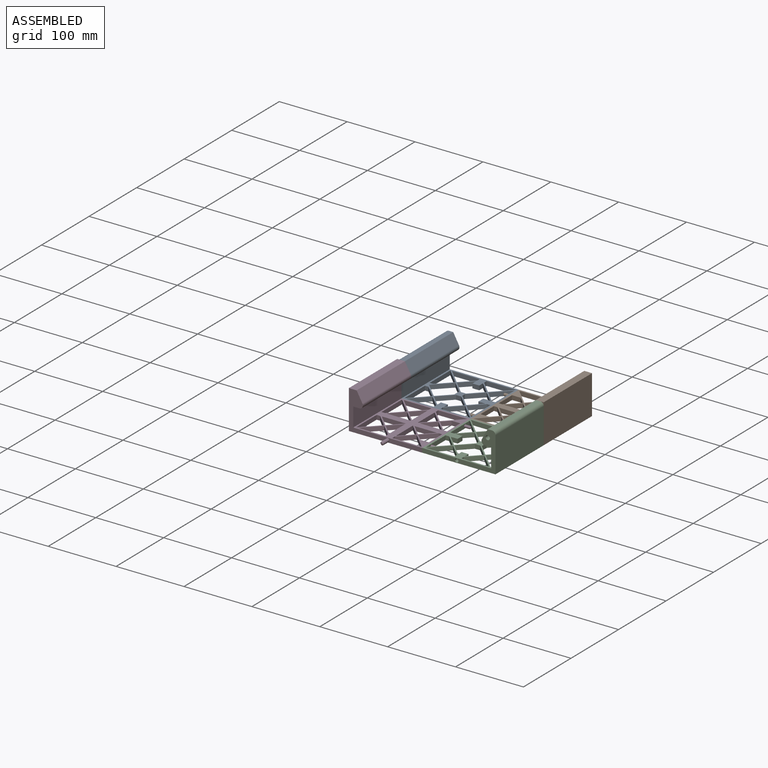
[diagram: assembled view]
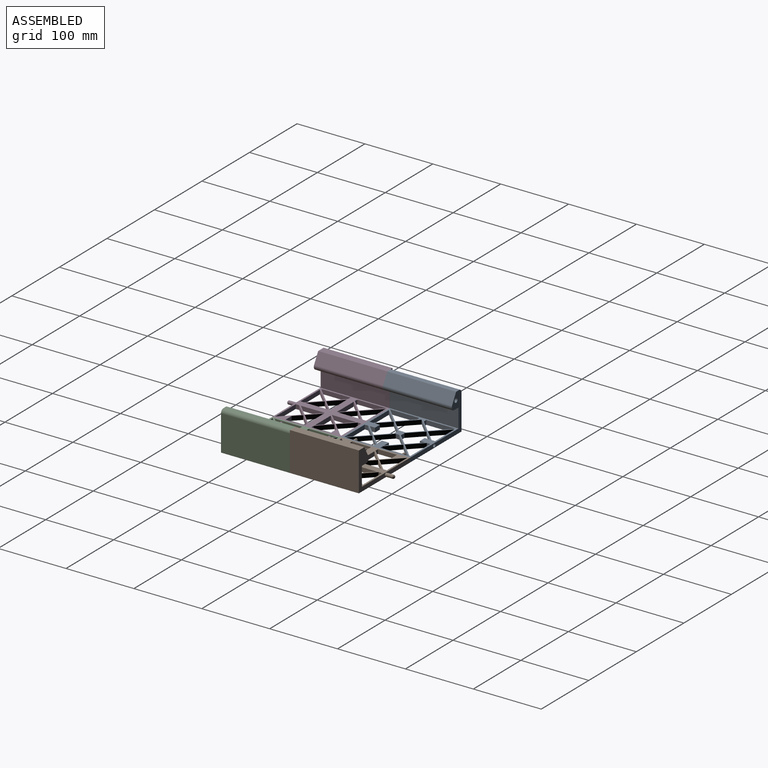
[diagram: assembled view, second angle]
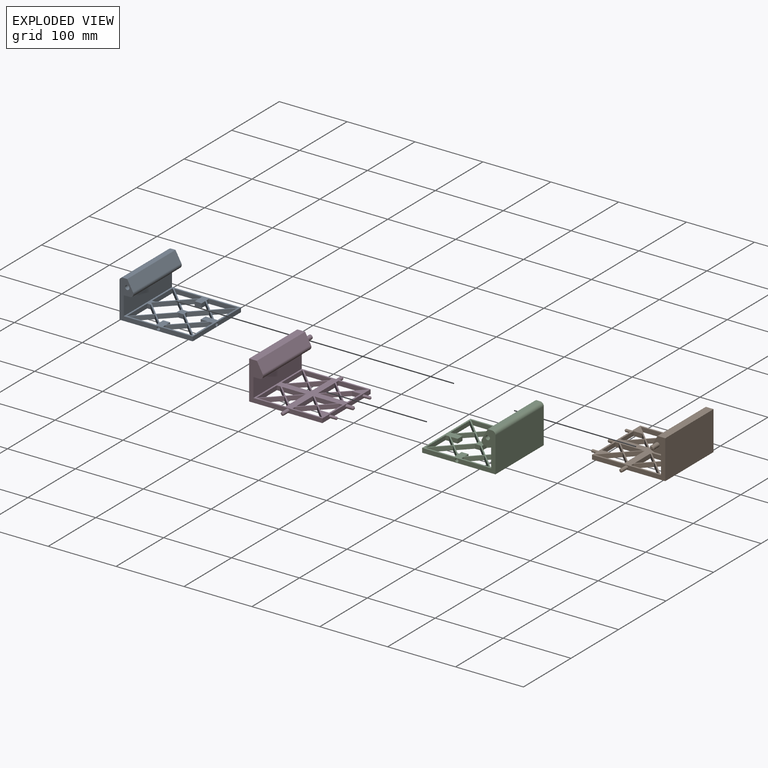
[diagram: exploded view]
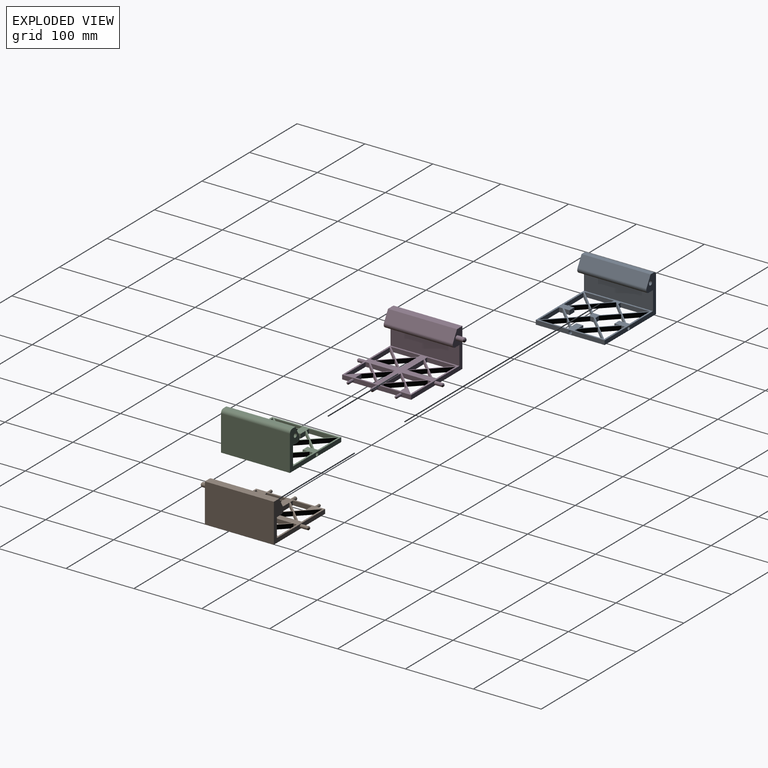
[diagram: exploded view, second angle]
ASSEMBLY  parts=4 mates=3
PART A: 83 faces, bbox 108x101.6x57.2 mm
  f0: plane 107.95x101.6mm, normal (0,0,-1), area 3088.2mm2, adj f3,f4,f8,f9,f11,f12,f13,f14
  f1: plane 101.6x101.6mm, normal (0,0,1), area 2443mm2, adj f4,f5,f8,f9,f11,f12,f13,f14
  f2: plane 101.6x6.35mm, normal (0,0,1), area 645.2mm2, adj f7,f8,f9,f82
  f3: plane 101.6x52.07mm, normal (-1,0,0), area 5290.3mm2, adj f0,f8,f9,f82
  f4: plane 101.6x6.35mm, normal (1,0,0), area 624.9mm2, adj f0,f1,f8,f9,f72
  f5: plane 101.6x27.94mm, normal (1,0,0), area 2838.7mm2, adj f1,f6,f8,f9
  f6: plane 101.6x9.15mm, normal (0,0,-1), area 929.3mm2, adj f5,f8,f9,f10
  f7: plane 101.6x15.31mm, normal (0.87,0,0.49), area 1779.8mm2, adj f2,f8,f9,f10
  f8: plane 107.95x57.15mm, normal (0,-1,0), area 1194.8mm2, adj f0,f1,f2,f3,f4,f5,f6,f7
  f9: plane 107.95x57.15mm, normal (0,1,0), area 1194.8mm2, adj f0,f1,f2,f3,f4,f5,f6,f7
  f10: cylinder r=5.08mm len=101.6mm, axis (0,-1,0), area 1072.5mm2, adj f6,f7,f8,f9
  f11: plane 43.18x6.35mm, normal (0,1,0), area 274.2mm2, adj f0,f1,f12,f14
  f12: plane 24.13x24.13mm, normal (-0.71,-0.71,0), area 216.7mm2, adj f0,f1,f11,f13
  f13: plane 19.05x19.05mm, normal (0.71,-0.71,0), area 171.1mm2, adj f0,f1,f12,f14
  f14: plane 6.35x5.08mm, normal (1,0,0), area 32.3mm2, adj f0,f1,f11,f13
  f15: plane 43.18x6.35mm, normal (1,0,0), area 274.2mm2, adj f0,f1,f16,f18
  f16: plane 24.13x24.13mm, normal (-0.71,0.71,0), area 216.7mm2, adj f0,f1,f15,f17
  f17: plane 19.05x19.05mm, normal (-0.71,-0.71,0), area 171.1mm2, adj f0,f1,f16,f18
  f18: plane 6.35x5.08mm, normal (0,-1,0), area 32.3mm2, adj f0,f1,f15,f17
  f19: plane 17.79x17.79mm, normal (-0.71,0.71,0), area 159.8mm2, adj f0,f1,f20,f22
  f20: plane 6.35x5.08mm, normal (-1,0,0), area 32.3mm2, adj f0,f1,f19,f21
  f21: plane 40.67x6.35mm, normal (0,-1,0), area 258.2mm2, adj f0,f1,f20,f22
  f22: plane 22.87x22.87mm, normal (0.71,0.71,0), area 205.4mm2, adj f0,f1,f19,f21
  f23: plane 19.05x19.05mm, normal (-0.71,0.71,0), area 171.1mm2, adj f0,f1,f24,f26
  f24: plane 24.13x24.13mm, normal (-0.71,-0.71,0), area 216.7mm2, adj f0,f1,f23,f25
  f25: plane 43.18x6.35mm, normal (1,0,0), area 274.2mm2, adj f0,f1,f24,f26
  f26: plane 6.35x5.08mm, normal (0,1,0), area 32.3mm2, adj f0,f1,f23,f25
  f27: plane 16.54x16.54mm, normal (-0.71,0.71,0), area 148.5mm2, adj f0,f1,f28,f34
  f28: plane 10.16x6.35mm, normal (0,-1,0), area 64.5mm2, adj f0,f1,f27,f29
  f29: plane 10.16x6.35mm, normal (-1,0,0), area 64.5mm2, adj f0,f1,f28,f30
  f30: plane 10.16x6.35mm, normal (0,1,0), area 64.5mm2, adj f0,f1,f29,f31
  f31: plane 16.54x16.54mm, normal (-0.71,-0.71,0), area 148.5mm2, adj f0,f1,f30,f32
  f32: plane 19.05x19.05mm, normal (0.71,-0.71,0), area 171.1mm2, adj f0,f1,f31,f33
  f33: plane 6.35x5.13mm, normal (1,0,0), area 32.6mm2, adj f0,f1,f32,f34
  f34: plane 19.05x19.05mm, normal (0.71,0.71,0), area 171.1mm2, adj f0,f1,f27,f33
  f35: plane 17.79x17.79mm, normal (0.71,0.71,0), area 159.8mm2, adj f0,f1,f36,f38
  f36: plane 6.35x5.08mm, normal (0,1,0), area 32.3mm2, adj f0,f1,f35,f37
  f37: plane 40.67x6.35mm, normal (-1,0,0), area 258.2mm2, adj f0,f1,f36,f38
  f38: plane 22.87x22.87mm, normal (0.71,-0.71,0), area 205.4mm2, adj f0,f1,f35,f37
  f39: plane 22.87x22.87mm, normal (0.71,0.71,0), area 205.4mm2, adj f0,f1,f40,f42
  f40: plane 40.67x6.35mm, normal (-1,0,0), area 258.2mm2, adj f0,f1,f39,f41
  f41: plane 6.35x5.08mm, normal (0,-1,0), area 32.3mm2, adj f0,f1,f40,f42
  f42: plane 17.79x17.79mm, normal (0.71,-0.71,0), area 159.8mm2, adj f0,f1,f39,f41
  f43: plane 7.62x6.35mm, normal (1,0,0), area 48.4mm2, adj f0,f1,f44,f50
  f44: plane 17.79x17.79mm, normal (-0.71,0.71,0), area 159.8mm2, adj f0,f1,f43,f45
  f45: plane 17.79x17.79mm, normal (-0.71,-0.71,0), area 159.8mm2, adj f0,f1,f44,f46
  f46: plane 7.65x6.35mm, normal (0,-1,0), area 48.5mm2, adj f0,f1,f45,f47
  f47: plane 19.05x19.05mm, normal (0.71,-0.71,0), area 171.1mm2, adj f0,f1,f46,f48
  f48: plane 16.54x16.54mm, normal (0.71,0.71,0), area 148.5mm2, adj f0,f1,f47,f49
  f49: plane 7.62x6.35mm, normal (-1,0,0), area 48.4mm2, adj f0,f1,f48,f50
  f50: plane 10.16x6.35mm, normal (0,1,0), area 64.5mm2, adj f0,f1,f43,f49
  f51: plane 17.79x17.79mm, normal (-0.71,0.71,0), area 159.8mm2, adj f0,f1,f52,f55
  f52: plane 10.16x6.35mm, normal (-1,0,0), area 64.5mm2, adj f0,f1,f51,f53
  f53: plane 17.79x17.79mm, normal (-0.71,-0.71,0), area 159.8mm2, adj f0,f1,f52,f54
  f54: plane 22.87x22.87mm, normal (0.71,-0.71,0), area 205.4mm2, adj f0,f1,f53,f55
  f55: plane 22.87x22.87mm, normal (0.71,0.71,0), area 205.4mm2, adj f0,f1,f51,f54
  f56: plane 6.35x5.08mm, normal (-1,0,0), area 32.3mm2, adj f0,f1,f57,f59
  f57: plane 17.79x17.79mm, normal (-0.71,-0.71,0), area 159.8mm2, adj f0,f1,f56,f58
  f58: plane 22.87x22.87mm, normal (0.71,-0.71,0), area 205.4mm2, adj f0,f1,f57,f59
  f59: plane 40.67x6.35mm, normal (0,1,0), area 258.2mm2, adj f0,f1,f56,f58
  f60: plane 24.13x24.13mm, normal (-0.71,0.71,0), area 216.7mm2, adj f0,f1,f61,f63
  f61: plane 43.18x6.35mm, normal (0,-1,0), area 274.2mm2, adj f0,f1,f60,f62
  f62: plane 6.35x5.08mm, normal (1,0,0), area 32.3mm2, adj f0,f1,f61,f63
  f63: plane 19.05x19.05mm, normal (0.71,0.71,0), area 171.1mm2, adj f0,f1,f60,f62
  f64: plane 7.65x6.35mm, normal (1,0,0), area 48.5mm2, adj f0,f1,f65,f71
  f65: plane 10.16x6.35mm, normal (0,-1,0), area 64.5mm2, adj f0,f1,f64,f66
  f66: plane 7.65x6.35mm, normal (-1,0,0), area 48.5mm2, adj f0,f1,f65,f67
  f67: plane 16.54x16.54mm, normal (0.71,-0.71,0), area 148.5mm2, adj f0,f1,f66,f68
  f68: plane 19.05x19.05mm, normal (0.71,0.71,0), area 171.1mm2, adj f0,f1,f67,f69
  f69: plane 7.65x6.35mm, normal (0,1,0), area 48.5mm2, adj f0,f1,f68,f70
  f70: plane 17.79x17.79mm, normal (-0.71,0.71,0), area 159.8mm2, adj f0,f1,f69,f71
  f71: plane 17.79x17.79mm, normal (-0.71,-0.71,0), area 159.8mm2, adj f0,f1,f64,f70
  f72: cylinder r=2.54mm len=11.43mm, axis (1,0,0), area 182.4mm2, adj f4,f73
  f73: plane 5.08x5.08mm, normal (1,0,0), area 20.3mm2, adj f72
  f74: cylinder r=2.54mm len=12.7mm, axis (0,-1,0), area 202.7mm2, adj f8,f75
  f75: plane 5.08x5.08mm, normal (0,-1,0), area 20.3mm2, adj f74
  f76: cylinder r=2.54mm len=5.08mm, axis (0,1,0), area 81.1mm2, adj f9,f77
  f77: plane 5.08x5.08mm, normal (0,1,0), area 20.3mm2, adj f76
  f78: cylinder r=3.17mm len=12.7mm, axis (0,1,0), area 253.4mm2, adj f9,f79
  f79: plane 6.35x6.35mm, normal (0,1,0), area 31.7mm2, adj f78
  f80: cylinder r=3.17mm len=12.7mm, axis (0,-1,0), area 253.4mm2, adj f8,f81
  f81: plane 6.35x6.35mm, normal (0,-1,0), area 31.7mm2, adj f80
  f82: cylinder r=5.08mm len=101.6mm, axis (0,1,0), area 810.7mm2, adj f2,f3,f8,f9
PART B: 87 faces, bbox 119.4x127x57.2 mm
  f0: plane 107.95x101.6mm, normal (0,0,-1), area 4450.5mm2, adj f3,f4,f8,f9,f11,f12,f13,f14
  f1: plane 101.6x101.6mm, normal (0,0,1), area 3805.4mm2, adj f4,f5,f8,f9,f11,f12,f13,f14
  f2: plane 101.6x11.43mm, normal (0,0,1), area 1161.3mm2, adj f3,f7,f8,f9
  f3: plane 101.6x57.15mm, normal (-1,0,0), area 5806.4mm2, adj f0,f2,f8,f9
  f4: plane 101.6x6.35mm, normal (1,0,0), area 598.9mm2, adj f0,f1,f8,f9,f69,f71,f73
  f5: plane 101.6x27.94mm, normal (1,0,0), area 2838.7mm2, adj f1,f6,f8,f9
  f6: plane 101.6x9.15mm, normal (0,0,-1), area 929.3mm2, adj f5,f8,f9,f10
  f7: plane 101.6x15.31mm, normal (0.87,0,0.49), area 1779.8mm2, adj f2,f8,f9,f10
  f8: plane 107.95x57.15mm, normal (0,-1,0), area 1232mm2, adj f0,f1,f2,f3,f4,f5,f6,f7
  f9: plane 107.95x57.15mm, normal (0,1,0), area 1200.4mm2, adj f0,f1,f2,f3,f4,f5,f6,f7
  f10: cylinder r=5.08mm len=101.6mm, axis (0,-1,0), area 1072.5mm2, adj f6,f7,f8,f9
  f11: plane 24.13x24.13mm, normal (-0.71,-0.71,0), area 216.7mm2, adj f0,f1,f12,f14
  f12: plane 19.05x19.05mm, normal (0.71,-0.71,0), area 171.1mm2, adj f0,f1,f11,f13
  f13: plane 6.35x5.08mm, normal (1,0,0), area 32.3mm2, adj f0,f1,f12,f14
  f14: plane 43.18x6.35mm, normal (0,1,0), area 274.2mm2, adj f0,f1,f11,f13
  f15: plane 22.87x22.87mm, normal (0.71,-0.71,0), area 205.4mm2, adj f0,f1,f16,f18
  f16: plane 40.67x6.35mm, normal (0,1,0), area 258.2mm2, adj f0,f1,f15,f17
  f17: plane 6.35x5.08mm, normal (-1,0,0), area 32.3mm2, adj f0,f1,f16,f18
  f18: plane 17.79x17.79mm, normal (-0.71,-0.71,0), area 159.8mm2, adj f0,f1,f15,f17
  f19: plane 17.79x17.79mm, normal (-0.71,0.71,0), area 159.8mm2, adj f0,f1,f20,f21
  f20: plane 35.59x6.35mm, normal (0,-1,0), area 226mm2, adj f0,f1,f19,f21
  f21: plane 17.79x17.79mm, normal (0.71,0.71,0), area 159.8mm2, adj f0,f1,f19,f20
  f22: plane 33.07x6.35mm, normal (-1,0,0), area 210mm2, adj f0,f1,f23,f24
  f23: plane 16.54x16.54mm, normal (0.71,-0.71,0), area 148.5mm2, adj f0,f1,f22,f24
  f24: plane 16.54x16.54mm, normal (0.71,0.71,0), area 148.5mm2, adj f0,f1,f22,f23
  f25: plane 35.59x6.35mm, normal (0,1,0), area 226mm2, adj f0,f1,f26,f27
  f26: plane 17.79x17.79mm, normal (-0.71,-0.71,0), area 159.8mm2, adj f0,f1,f25,f27
  f27: plane 17.79x17.79mm, normal (0.71,-0.71,0), area 159.8mm2, adj f0,f1,f25,f26
  f28: plane 6.35x5.08mm, normal (0,1,0), area 32.3mm2, adj f0,f1,f29,f31
  f29: plane 19.05x19.05mm, normal (-0.71,0.71,0), area 171.1mm2, adj f0,f1,f28,f30
  f30: plane 24.13x24.13mm, normal (-0.71,-0.71,0), area 216.7mm2, adj f0,f1,f29,f31
  f31: plane 43.18x6.35mm, normal (1,0,0), area 274.2mm2, adj f0,f1,f28,f30
  f32: plane 6.35x5.08mm, normal (-1,0,0), area 32.3mm2, adj f0,f1,f33,f35
  f33: plane 40.67x6.35mm, normal (0,-1,0), area 258.2mm2, adj f0,f1,f32,f34
  f34: plane 22.87x22.87mm, normal (0.71,0.71,0), area 205.4mm2, adj f0,f1,f33,f35
  f35: plane 17.79x17.79mm, normal (-0.71,0.71,0), area 159.8mm2, adj f0,f1,f32,f34
  f36: plane 24.13x24.13mm, normal (-0.71,0.71,0), area 216.7mm2, adj f0,f1,f37,f39
  f37: plane 19.05x19.05mm, normal (-0.71,-0.71,0), area 171.1mm2, adj f0,f1,f36,f38
  f38: plane 6.35x5.08mm, normal (0,-1,0), area 32.3mm2, adj f0,f1,f37,f39
  f39: plane 43.18x6.35mm, normal (1,0,0), area 274.2mm2, adj f0,f1,f36,f38
  f40: plane 16.54x16.54mm, normal (-0.71,-0.71,0), area 148.5mm2, adj f0,f1,f41,f42
  f41: plane 16.54x16.54mm, normal (0.71,-0.71,0), area 148.5mm2, adj f0,f1,f40,f42
  f42: plane 33.07x6.35mm, normal (0,1,0), area 210mm2, adj f0,f1,f40,f41
  f43: plane 16.54x16.54mm, normal (-0.71,0.71,0), area 148.5mm2, adj f0,f1,f44,f45
  f44: plane 33.07x6.35mm, normal (0,-1,0), area 210mm2, adj f0,f1,f43,f45
  f45: plane 16.54x16.54mm, normal (0.71,0.71,0), area 148.5mm2, adj f0,f1,f43,f44
  f46: plane 10.17x10.17mm, normal (0.71,0.71,0), area 91.4mm2, adj f0,f1,f47,f50
  f47: plane 12.7x6.35mm, normal (0,1,0), area 80.6mm2, adj f0,f1,f46,f48
  f48: plane 27.97x6.35mm, normal (-1,0,0), area 177.6mm2, adj f0,f1,f47,f49
  f49: plane 6.35x5.08mm, normal (0,-1,0), area 32.3mm2, adj f0,f1,f48,f50
  f50: plane 17.79x17.79mm, normal (0.71,-0.71,0), area 159.8mm2, adj f0,f1,f46,f49
  f51: plane 17.79x17.79mm, normal (-0.71,0.71,0), area 159.8mm2, adj f0,f1,f52,f53
  f52: plane 17.79x17.79mm, normal (-0.71,-0.71,0), area 159.8mm2, adj f0,f1,f51,f53
  f53: plane 35.59x6.35mm, normal (1,0,0), area 226mm2, adj f0,f1,f51,f52
  f54: plane 16.54x16.54mm, normal (0.71,0.71,0), area 148.5mm2, adj f0,f1,f55,f56
  f55: plane 33.07x6.35mm, normal (-1,0,0), area 210mm2, adj f0,f1,f54,f56
  f56: plane 16.54x16.54mm, normal (0.71,-0.71,0), area 148.5mm2, adj f0,f1,f54,f55
  f57: plane 17.79x17.79mm, normal (-0.71,0.71,0), area 159.8mm2, adj f0,f1,f58,f59
  f58: plane 17.79x17.79mm, normal (-0.71,-0.71,0), area 159.8mm2, adj f0,f1,f57,f59
  f59: plane 35.59x6.35mm, normal (1,0,0), area 226mm2, adj f0,f1,f57,f58
  f60: plane 12.7x6.35mm, normal (0,-1,0), area 80.6mm2, adj f0,f1,f61,f64
  f61: plane 10.17x10.17mm, normal (0.71,-0.71,0), area 91.4mm2, adj f0,f1,f60,f62
  f62: plane 17.79x17.79mm, normal (0.71,0.71,0), area 159.8mm2, adj f0,f1,f61,f63
  f63: plane 6.35x5.08mm, normal (0,1,0), area 32.3mm2, adj f0,f1,f62,f64
  f64: plane 27.97x6.35mm, normal (-1,0,0), area 177.6mm2, adj f0,f1,f60,f63
  f65: plane 24.13x24.13mm, normal (-0.71,0.71,0), area 216.7mm2, adj f0,f1,f66,f68
  f66: plane 43.18x6.35mm, normal (0,-1,0), area 274.2mm2, adj f0,f1,f65,f67
  f67: plane 6.35x5.08mm, normal (1,0,0), area 32.3mm2, adj f0,f1,f66,f68
  f68: plane 19.05x19.05mm, normal (0.71,0.71,0), area 171.1mm2, adj f0,f1,f65,f67
  f69: cylinder r=2.54mm len=10.16mm, axis (-1,0,0), area 162.1mm2, adj f4,f83
  f70: plane 2.54x2.54mm, normal (1,0,0), area 5.1mm2, adj f83
  f71: cylinder r=2.03mm len=10.16mm, axis (-1,0,0), area 129.7mm2, adj f4,f82
  f72: plane 1.52x1.52mm, normal (1,0,0), area 1.8mm2, adj f82
  f73: cylinder r=2.03mm len=10.16mm, axis (-1,0,0), area 129.7mm2, adj f4,f84
  f74: plane 1.52x1.52mm, normal (1,0,0), area 1.8mm2, adj f84
  f75: cylinder r=2.54mm len=11.43mm, axis (0,1,0), area 182.4mm2, adj f8,f81
  f76: plane 2.54x2.54mm, normal (0,-1,0), area 5.1mm2, adj f81
  f77: cylinder r=2.54mm len=11.43mm, axis (0,-1,0), area 182.4mm2, adj f9,f85
  f78: plane 2.54x2.54mm, normal (0,1,0), area 5.1mm2, adj f85
  f79: cylinder r=3.17mm len=11.43mm, axis (0,-1,0), area 228mm2, adj f9,f86
  f80: plane 3.81x3.81mm, normal (0,1,0), area 11.4mm2, adj f86
  f81: cone r=1.27mm half-angle=45deg, axis (0,1,0), area 21.5mm2, adj f75,f76
  f82: cone r=0.76mm half-angle=45deg, axis (-1,0,0), area 15.8mm2, adj f71,f72
  f83: cone r=1.27mm half-angle=45deg, axis (-1,0,0), area 21.5mm2, adj f69,f70
  f84: cone r=0.76mm half-angle=45deg, axis (-1,0,0), area 15.8mm2, adj f73,f74
  f85: cone r=2.54mm half-angle=45deg, axis (0,-1,0), area 21.5mm2, adj f77,f78
  f86: cone r=3.17mm half-angle=45deg, axis (0,-1,0), area 28.7mm2, adj f79,f80
PART C: same geometry as A
PART D: same geometry as B
PLACE A t=(20.63,172.52,-63.69)mm
PLACE B rot(axis=(0,0,1),180deg) t=(223.83,70.92,-63.69)mm
PLACE C rot(axis=(0,0,1),180deg) t=(223.83,-30.68,-63.69)mm
PLACE D t=(20.63,70.92,-63.69)mm
MATE pin_slot C.f72 <-> D.f69  axis (-1,0,0) through (133.66,20.12,-66.87)mm
MATE pin_slot D.f75 <-> A.f74  axis (0,1,0) through (71.43,83.62,-66.87)mm
MATE pin_slot B.f69 <-> A.f72  axis (-1,0,0) through (110.8,121.72,-66.87)mm
